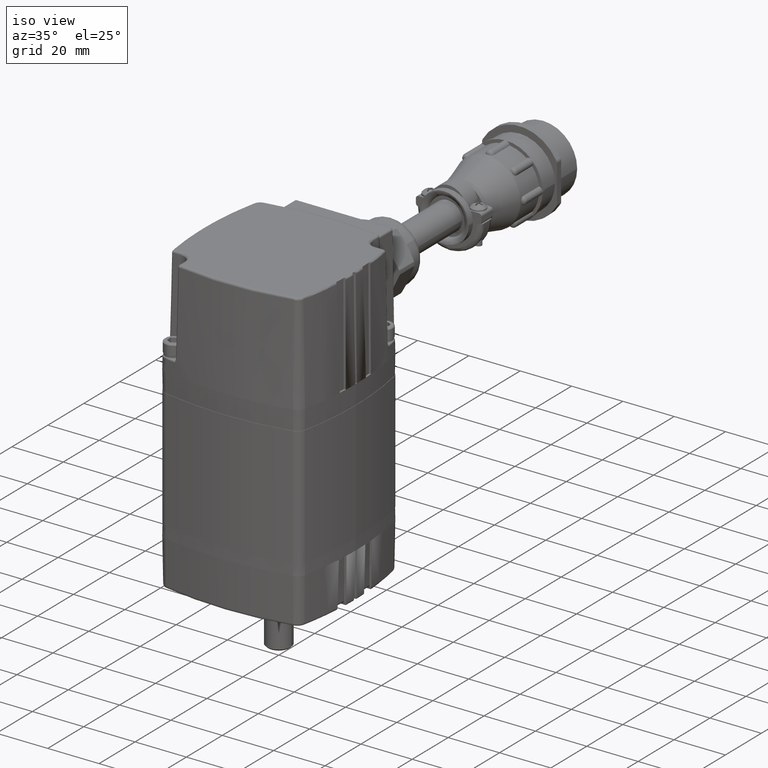
[diagram: clean part render]
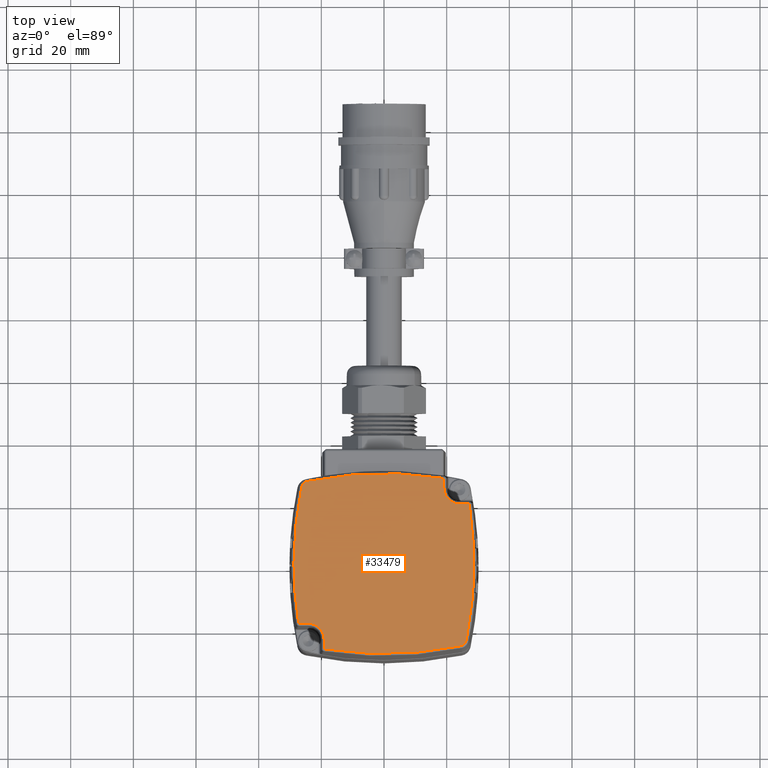
[diagram: tour spotlight — one face highlighted and labeled with its STEP entity id]
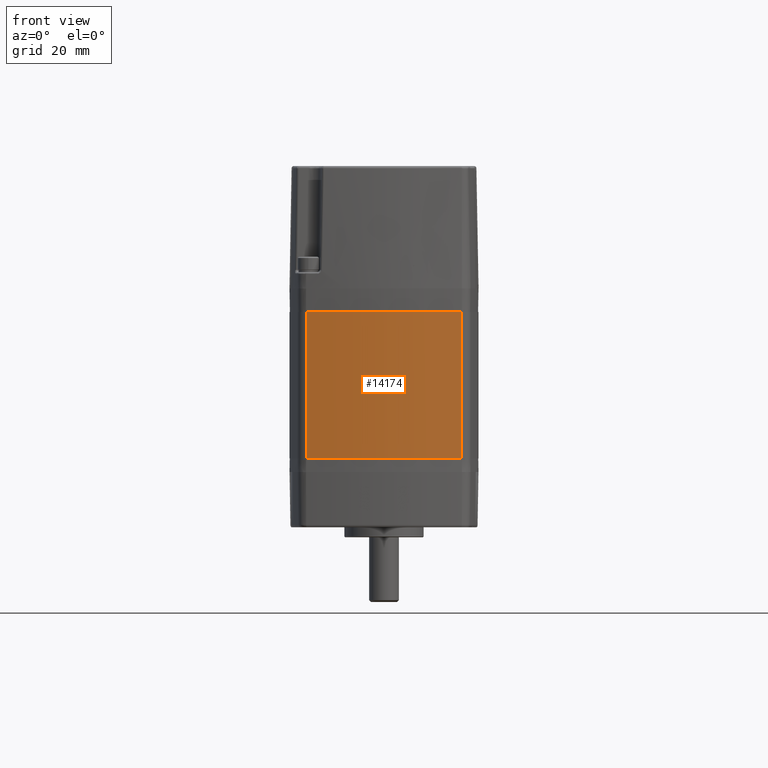
[diagram: tour spotlight — one face highlighted and labeled with its STEP entity id]
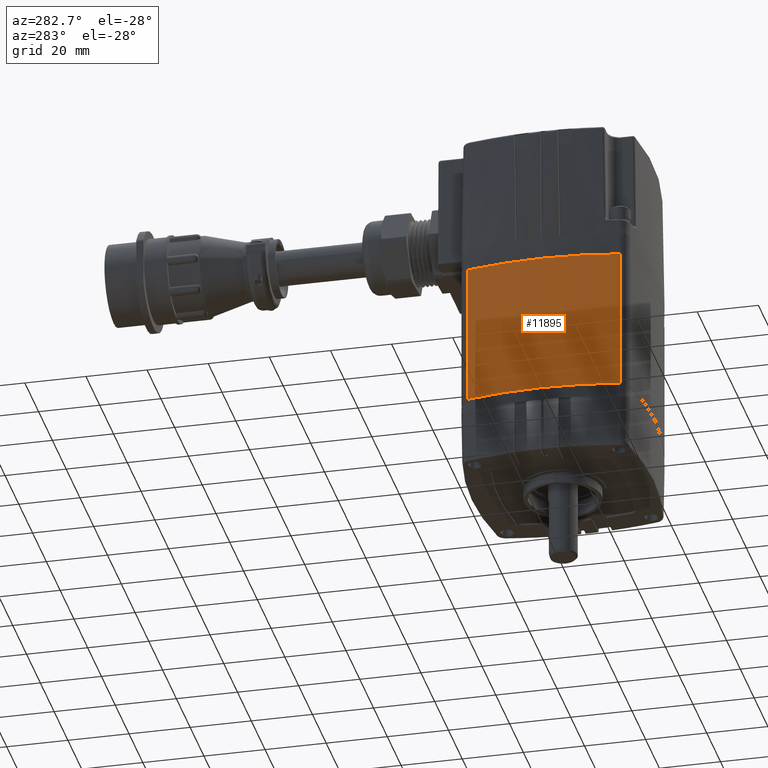
[diagram: tour spotlight — one face highlighted and labeled with its STEP entity id]
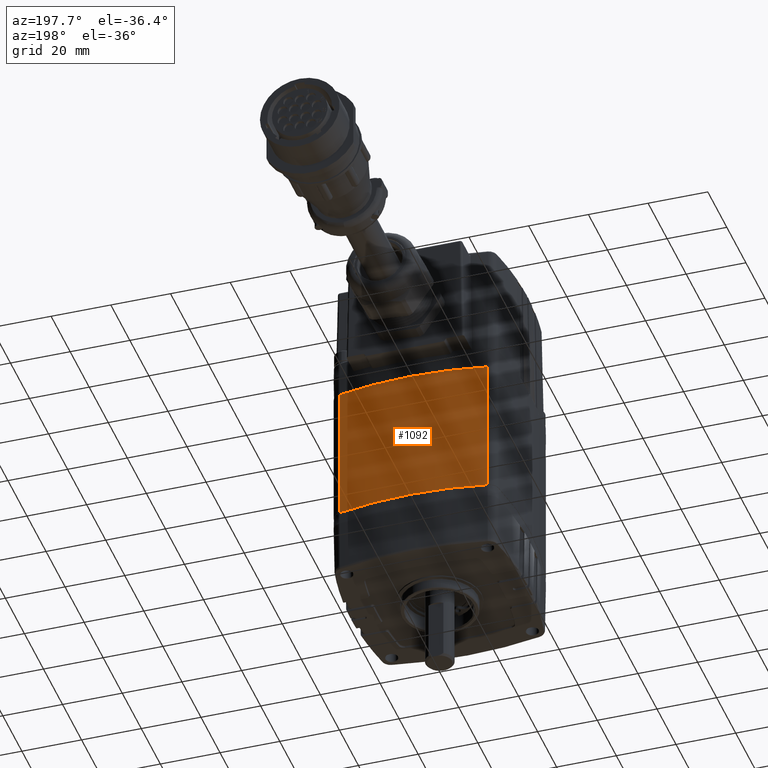
[diagram: tour spotlight — one face highlighted and labeled with its STEP entity id]
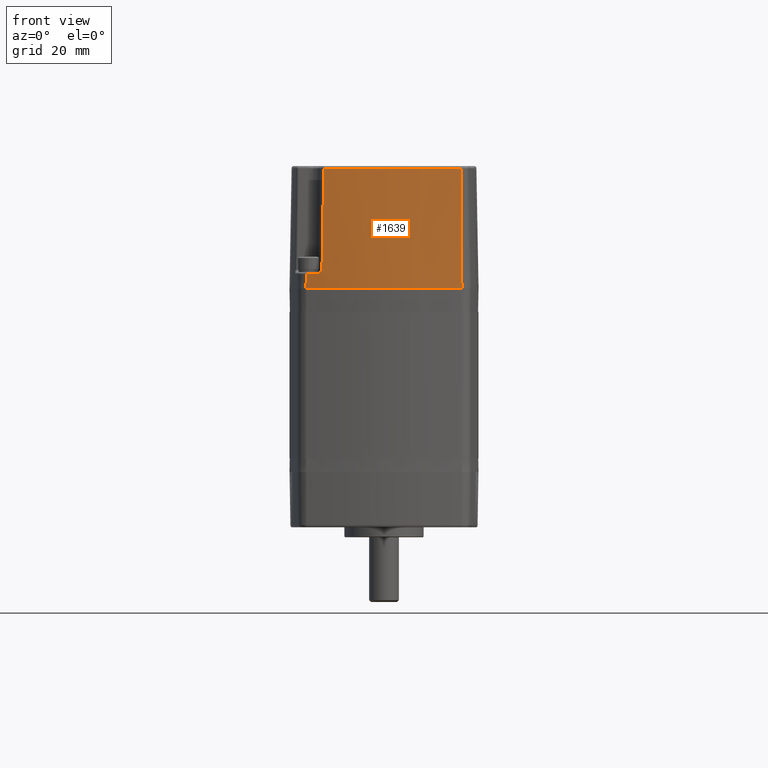
[diagram: tour spotlight — one face highlighted and labeled with its STEP entity id]
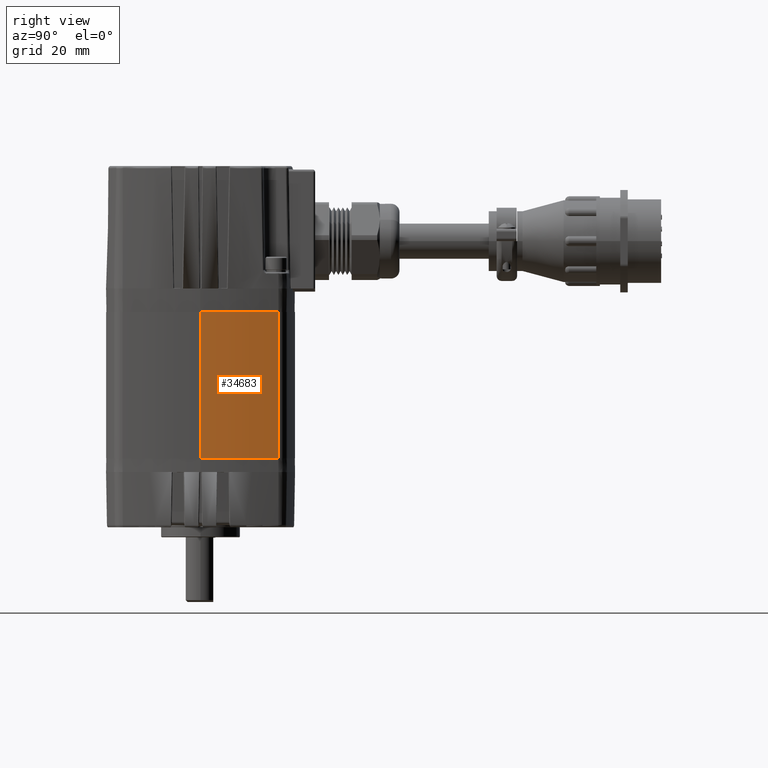
[diagram: tour spotlight — one face highlighted and labeled with its STEP entity id]
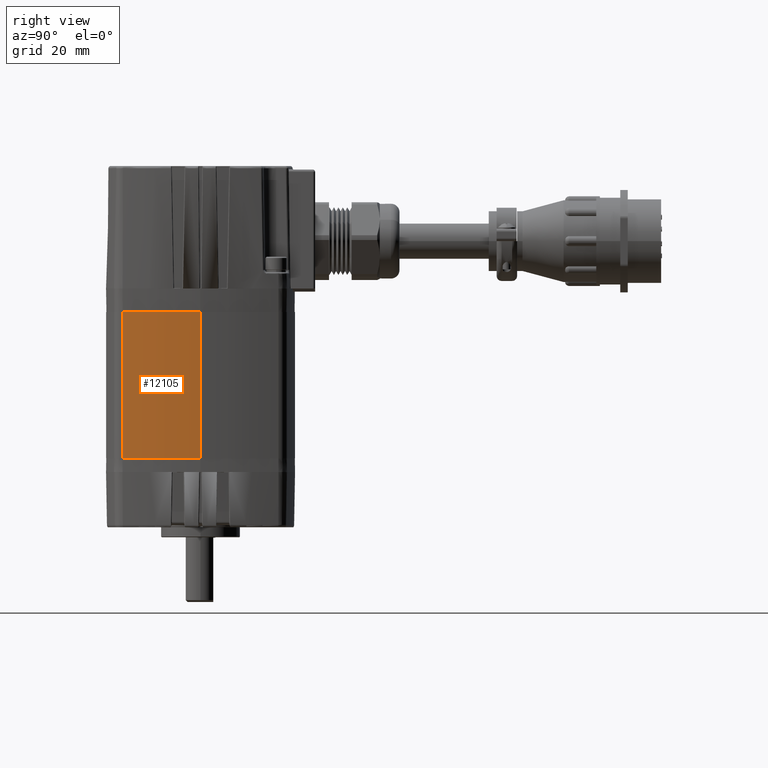
[diagram: tour spotlight — one face highlighted and labeled with its STEP entity id]
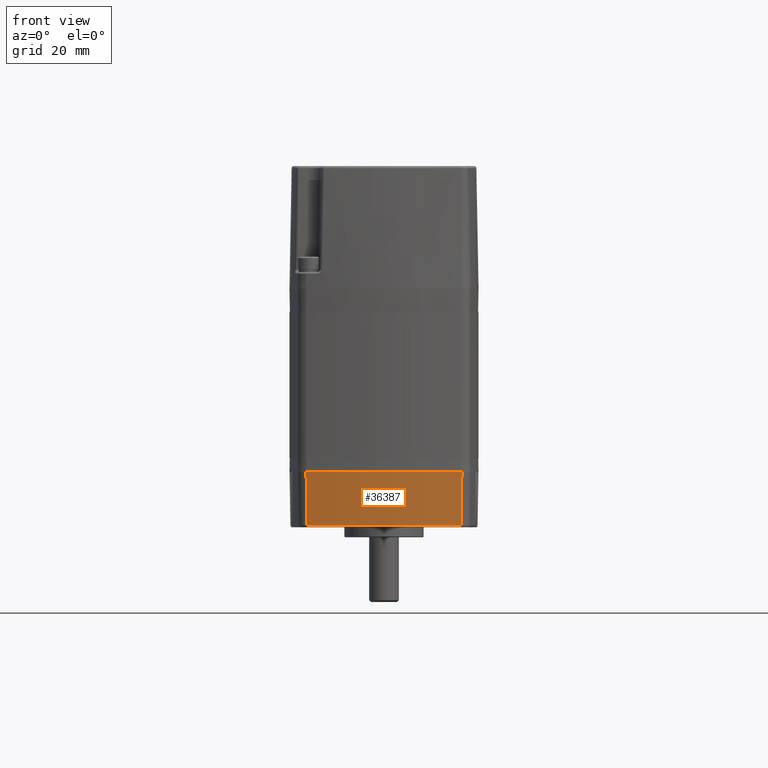
[diagram: tour spotlight — one face highlighted and labeled with its STEP entity id]
A machine part: a face-by-face anatomy tour. The part has 1172 B-rep faces; the first image is the clean iso view, then the 8 largest visible faces are spotlighted one at a time (largest first), each with its STEP entity span.

Face 1 — top view, entity #33479. In plain terms, the highlighted planar face has unit normal (0, 0, -1).
Definition (entity closure, byte-faithful):
#350 = PLANE ( 'NONE',  #34687 ) ;
#824 = ORIENTED_EDGE ( 'NONE', *, *, #33300, .F. ) ;
#1621 = CARTESIAN_POINT ( 'NONE',  ( 1.032429356242400500, 0.9674067805261568100, -1.860000000012984800 ) ) ;
#1811 =( BOUNDED_CURVE ( )  B_SPLINE_CURVE ( 3, ( #1621, #38370, #7902, #29300 ),
 .UNSPECIFIED., .F., .T. ) 
 B_SPLINE_CURVE_WITH_KNOTS ( ( 4, 4 ),
 ( 0.0000000000000000000, 1.000000000000000000 ),
 .UNSPECIFIED. ) 
 CURVE ( )  GEOMETRIC_REPRESENTATION_ITEM ( )  RATIONAL_B_SPLINE_CURVE ( ( 0.9570772342602944500, 0.8520200637530343000, 0.8520200637530343000, 0.9570772342602944500 ) ) 
 REPRESENTATION_ITEM ( '' )  );
#2029 = EDGE_CURVE ( 'NONE', #6014, #28182, #3324, .T. ) ;
#2673 = CARTESIAN_POINT ( 'NONE',  ( 1.071705150914283400, -0.7522165703631089600, -1.859999999945756800 ) ) ;
#2981 = CARTESIAN_POINT ( 'NONE',  ( 1.131138282254428500, -1.236978528518903300E-014, -1.860000000012984400 ) ) ;
#3324 = LINE ( 'NONE', #23103, #10577 ) ;
#3421 = CARTESIAN_POINT ( 'NONE',  ( 1.032429356242400500, 0.9674067805261568100, -1.860000000012984800 ) ) ;
#3886 = CARTESIAN_POINT ( 'NONE',  ( 0.3997145294070384400, 1.149496608415903500, -1.860000000021639700 ) ) ;
#4013 =( BOUNDED_CURVE ( )  B_SPLINE_CURVE ( 3, ( #29646, #11357, #38818, #20552 ),
 .UNSPECIFIED., .F., .T. ) 
 B_SPLINE_CURVE_WITH_KNOTS ( ( 4, 4 ),
 ( 0.0000000000000000000, 1.000000000000000000 ),
 .UNSPECIFIED. ) 
 CURVE ( )  GEOMETRIC_REPRESENTATION_ITEM ( )  RATIONAL_B_SPLINE_CURVE ( ( 0.9570772169255890000, 0.9467080853396554500, 0.9467080853396554500, 0.9570772169255890000 ) ) 
 REPRESENTATION_ITEM ( '' )  );
#4523 = ORIENTED_EDGE ( 'NONE', *, *, #38674, .F. ) ;
#4991 = CARTESIAN_POINT ( 'NONE',  ( -0.8341411496755086800, 0.7522165703190993900, -1.860000000021641200 ) ) ;
#5231 = EDGE_CURVE ( 'NONE', #30010, #34817, #23287, .T. ) ;
#5241 = VERTEX_POINT ( 'NONE', #31430 ) ;
#5489 = ORIENTED_EDGE ( 'NONE', *, *, #31800, .F. ) ;
#6014 = VERTEX_POINT ( 'NONE', #26153 ) ;
#6495 = DIRECTION ( 'NONE',  ( 1.000000000000000000, -1.093569679255777100E-014, -0.0000000000000000000 ) ) ;
#6815 = VERTEX_POINT ( 'NONE', #24311 ) ;
#7393 = ORIENTED_EDGE ( 'NONE', *, *, #18450, .F. ) ;
#7902 = CARTESIAN_POINT ( 'NONE',  ( 1.001128663644604800, 1.025475362336313800, -1.860000000021641000 ) ) ;
#8777 = CARTESIAN_POINT ( 'NONE',  ( -1.149496608432206000, -0.3997145294083938600, -1.860000000021640100 ) ) ;
#8908 =( BOUNDED_CURVE ( )  B_SPLINE_CURVE ( 3, ( #38541, #17220, #4991, #26400 ),
 .UNSPECIFIED., .F., .F. ) 
 B_SPLINE_CURVE_WITH_KNOTS ( ( 4, 4 ),
 ( 0.0000000000000000000, 1.000000000000000000 ),
 .UNSPECIFIED. ) 
 CURVE ( )  GEOMETRIC_REPRESENTATION_ITEM ( )  RATIONAL_B_SPLINE_CURVE ( ( 0.9570772354823341400, 0.7701962807133332400, 0.7701962807133332400, 0.9570772354823341400 ) ) 
 REPRESENTATION_ITEM ( '' )  );
#8919 = VERTEX_POINT ( 'NONE', #17690 ) ;
#9413 = ORIENTED_EDGE ( 'NONE', *, *, #24086, .F. ) ;
#9810 = VERTEX_POINT ( 'NONE', #38840 ) ;
#9888 = CARTESIAN_POINT ( 'NONE',  ( 0.8341411496755087900, -0.7522165703190997200, -1.860000000021641500 ) ) ;
#9919 = DIRECTION ( 'NONE',  ( -1.093569679255777100E-014, 1.000000000000000000, 0.0000000000000000000 ) ) ;
#10577 = VECTOR ( 'NONE', #32330, 39.37007874015748100 ) ;
#10754 = ORIENTED_EDGE ( 'NONE', *, *, #25392, .F. ) ;
#11151 = ORIENTED_EDGE ( 'NONE', *, *, #31619, .F. ) ;
#11357 = CARTESIAN_POINT ( 'NONE',  ( -0.3997145295138425600, -1.149496609700682500, -1.860000000021640100 ) ) ;
#11833 = VERTEX_POINT ( 'NONE', #24361 ) ;
#11971 = ORIENTED_EDGE ( 'NONE', *, *, #15649, .F. ) ;
#12047 = VERTEX_POINT ( 'NONE', #38150 ) ;
#12562 = CARTESIAN_POINT ( 'NONE',  ( 1.131138282254428500, -1.236978528518903300E-014, -1.860000000012984200 ) ) ;
#12668 = ORIENTED_EDGE ( 'NONE', *, *, #20429, .F. ) ;
#13169 = CARTESIAN_POINT ( 'NONE',  ( -0.1797715006895717900, 1.162731934035691400, -1.860000000021639700 ) ) ;
#13817 = DIRECTION ( 'NONE',  ( 1.093569679255777100E-014, -1.000000000000000000, -0.0000000000000000000 ) ) ;
#14346 = CARTESIAN_POINT ( 'NONE',  ( -1.032429356327706900, -0.9674067804350160400, -1.860000000012984400 ) ) ;
#14460 = CARTESIAN_POINT ( 'NONE',  ( -0.9674067805798055600, -1.032429356502558200, -1.860000000012984800 ) ) ;
#14976 = VERTEX_POINT ( 'NONE', #22334 ) ;
#15225 = CARTESIAN_POINT ( 'NONE',  ( 1.071705150914283400, -0.7522165703631089600, -1.859999999945756800 ) ) ;
#15649 = EDGE_CURVE ( 'NONE', #11833, #30010, #4013, .T. ) ;
#16410 = CARTESIAN_POINT ( 'NONE',  ( -1.032429356327706900, -0.9674067804350159300, -1.860000000012984400 ) ) ;
#16614 = VECTOR ( 'NONE', #13817, 39.37007874015748100 ) ;
#16994 = CARTESIAN_POINT ( 'NONE',  ( -0.7522165706465591100, 8.226012338928432000E-015, -1.860000000000000300 ) ) ;
#17220 = CARTESIAN_POINT ( 'NONE',  ( -0.7522165703190993900, 0.8341411496755086800, -1.860000000021641200 ) ) ;
#17458 = CARTESIAN_POINT ( 'NONE',  ( -1.071705150734702800, 0.7522165701882590500, -1.860000000068670300 ) ) ;
#17526 = DIRECTION ( 'NONE',  ( -1.000000000000000000, 1.093569679255777100E-014, 0.0000000000000000000 ) ) ;
#17690 = CARTESIAN_POINT ( 'NONE',  ( -0.7522165703616897600, 1.071705150589045800, -1.860000000149665300 ) ) ;
#17731 = FACE_OUTER_BOUND ( 'NONE', #30382, .T. ) ;
#17897 = CARTESIAN_POINT ( 'NONE',  ( -1.071705150734702800, 0.7522165701882590500, -1.860000000068670300 ) ) ;
#18450 = EDGE_CURVE ( 'NONE', #9810, #8919, #22921, .T. ) ;
#18478 =( BOUNDED_CURVE ( )  B_SPLINE_CURVE ( 3, ( #15225, #33463, #21326, #2981 ),
 .UNSPECIFIED., .F., .F. ) 
 B_SPLINE_CURVE_WITH_KNOTS ( ( 4, 4 ),
 ( 0.0000000000000000000, 1.000000000000000000 ),
 .UNSPECIFIED. ) 
 CURVE ( )  GEOMETRIC_REPRESENTATION_ITEM ( )  RATIONAL_B_SPLINE_CURVE ( ( 0.9570772342164161100, 0.9550949332542009200, 0.9550949332542009200, 0.9570772342164161100 ) ) 
 REPRESENTATION_ITEM ( '' )  );
#18988 = CARTESIAN_POINT ( 'NONE',  ( 0.7522165704050030000, -0.9500000002880485400, -1.860000000008656500 ) ) ;
#20429 = EDGE_CURVE ( 'NONE', #34817, #6014, #35592, .T. ) ;
#20552 = CARTESIAN_POINT ( 'NONE',  ( 0.7522165702490222200, -1.071705151054613800, -1.859999999935987700 ) ) ;
#21326 = CARTESIAN_POINT ( 'NONE',  ( 1.131138282416005900, -0.2520423114403188000, -1.860000000021639700 ) ) ;
#21742 = CARTESIAN_POINT ( 'NONE',  ( -1.144711942000045800, -1.144711942000045800, -1.860000000000000300 ) ) ;
#21750 = CARTESIAN_POINT ( 'NONE',  ( 1.098121614143382500, 0.6488464208529090000, -1.860000000021640800 ) ) ;
#22334 = CARTESIAN_POINT ( 'NONE',  ( 1.131138282254428500, -1.236978528518903300E-014, -1.860000000012984400 ) ) ;
#22921 =( BOUNDED_CURVE ( )  B_SPLINE_CURVE ( 3, ( #37417, #3886, #13169, #34474 ),
 .UNSPECIFIED., .F., .F. ) 
 B_SPLINE_CURVE_WITH_KNOTS ( ( 4, 4 ),
 ( 0.0000000000000000000, 1.000000000000000000 ),
 .UNSPECIFIED. ) 
 CURVE ( )  GEOMETRIC_REPRESENTATION_ITEM ( )  RATIONAL_B_SPLINE_CURVE ( ( 0.9570772336300994400, 0.9467081018631865500, 0.9467081018631865500, 0.9570772336300994400 ) ) 
 REPRESENTATION_ITEM ( '' )  );
#23103 = CARTESIAN_POINT ( 'NONE',  ( 8.226012338928428800E-015, -0.7522165706465591100, -1.860000000000000300 ) ) ;
#23287 = LINE ( 'NONE', #28210, #31432 ) ;
#23481 = CARTESIAN_POINT ( 'NONE',  ( -1.025475362336313800, -1.001128663644604800, -1.860000000021641000 ) ) ;
#23561 =( BOUNDED_CURVE ( )  B_SPLINE_CURVE ( 3, ( #17897, #30038, #8777, #30163 ),
 .UNSPECIFIED., .F., .F. ) 
 B_SPLINE_CURVE_WITH_KNOTS ( ( 4, 4 ),
 ( 0.0000000000000000000, 1.000000000000000000 ),
 .UNSPECIFIED. ) 
 CURVE ( )  GEOMETRIC_REPRESENTATION_ITEM ( )  RATIONAL_B_SPLINE_CURVE ( ( 0.9570772334181132400, 0.9467081016534966100, 0.9467081016534966100, 0.9570772334181132400 ) ) 
 REPRESENTATION_ITEM ( '' )  );
#23671 = EDGE_CURVE ( 'NONE', #24159, #29541, #23561, .T. ) ;
#24086 = EDGE_CURVE ( 'NONE', #12047, #6815, #8908, .T. ) ;
#24159 = VERTEX_POINT ( 'NONE', #17458 ) ;
#24311 = CARTESIAN_POINT ( 'NONE',  ( -0.9500000003600425100, 0.7522165704030729900, -1.860000000005410400 ) ) ;
#24361 = CARTESIAN_POINT ( 'NONE',  ( -0.9674067805798055600, -1.032429356502558200, -1.860000000012984800 ) ) ;
#24814 = DIRECTION ( 'NONE',  ( 0.0000000000000000000, -0.0000000000000000000, 1.000000000000000000 ) ) ;
#24886 = ORIENTED_EDGE ( 'NONE', *, *, #2029, .F. ) ;
#25086 = CARTESIAN_POINT ( 'NONE',  ( 0.7522165703190997200, -0.8341411496755087900, -1.860000000021641500 ) ) ;
#25392 = EDGE_CURVE ( 'NONE', #5241, #9810, #1811, .T. ) ;
#25564 =( BOUNDED_CURVE ( )  B_SPLINE_CURVE ( 3, ( #14346, #23481, #32714, #14460 ),
 .UNSPECIFIED., .F., .T. ) 
 B_SPLINE_CURVE_WITH_KNOTS ( ( 4, 4 ),
 ( 0.0000000000000000000, 1.000000000000000000 ),
 .UNSPECIFIED. ) 
 CURVE ( )  GEOMETRIC_REPRESENTATION_ITEM ( )  RATIONAL_B_SPLINE_CURVE ( ( 0.9570772342602923400, 0.8520200637530334100, 0.8520200637530334100, 0.9570772342602923400 ) ) 
 REPRESENTATION_ITEM ( '' )  );
#25813 =( BOUNDED_CURVE ( )  B_SPLINE_CURVE ( 3, ( #12562, #30847, #21750, #3421 ),
 .UNSPECIFIED., .F., .T. ) 
 B_SPLINE_CURVE_WITH_KNOTS ( ( 4, 4 ),
 ( 0.0000000000000000000, 1.000000000000000000 ),
 .UNSPECIFIED. ) 
 CURVE ( )  GEOMETRIC_REPRESENTATION_ITEM ( )  RATIONAL_B_SPLINE_CURVE ( ( 0.9570772342602966700, 0.9537815521664616500, 0.9537815521664616500, 0.9570772342602966700 ) ) 
 REPRESENTATION_ITEM ( '' )  );
#26153 = CARTESIAN_POINT ( 'NONE',  ( 0.9500000003600425100, -0.7522165704061495300, -1.860000000005410400 ) ) ;
#26400 = CARTESIAN_POINT ( 'NONE',  ( -0.9500000003600425100, 0.7522165704030729900, -1.860000000005410400 ) ) ;
#27922 = ORIENTED_EDGE ( 'NONE', *, *, #5231, .F. ) ;
#28182 = VERTEX_POINT ( 'NONE', #2673 ) ;
#28210 = CARTESIAN_POINT ( 'NONE',  ( 0.7522165706465591100, -8.226012338928432000E-015, -1.860000000000000300 ) ) ;
#29300 = CARTESIAN_POINT ( 'NONE',  ( 0.9674067805281073600, 1.032429356251858500, -1.860000000012984400 ) ) ;
#29541 = VERTEX_POINT ( 'NONE', #16410 ) ;
#29646 = CARTESIAN_POINT ( 'NONE',  ( -0.9674067805798055600, -1.032429356502558200, -1.860000000012984800 ) ) ;
#29660 = VECTOR ( 'NONE', #17526, 39.37007874015748100 ) ;
#29889 = ORIENTED_EDGE ( 'NONE', *, *, #23671, .F. ) ;
#30010 = VERTEX_POINT ( 'NONE', #33098 ) ;
#30038 = CARTESIAN_POINT ( 'NONE',  ( -1.162731934052039000, 0.1797715006901813300, -1.860000000021640100 ) ) ;
#30163 = CARTESIAN_POINT ( 'NONE',  ( -1.032429356327706900, -0.9674067804350159300, -1.860000000012984400 ) ) ;
#30382 = EDGE_LOOP ( 'NONE', ( #7393, #10754, #4523, #5489, #24886, #12668, #27922, #11971, #11151, #29889, #824, #9413, #36578 ) ) ;
#30847 = CARTESIAN_POINT ( 'NONE',  ( 1.131138282412737800, 0.3252632401177468200, -1.860000000021640800 ) ) ;
#31268 = CARTESIAN_POINT ( 'NONE',  ( 0.9500000003600425100, -0.7522165704061495300, -1.860000000005410400 ) ) ;
#31430 = CARTESIAN_POINT ( 'NONE',  ( 1.032429356242400500, 0.9674067805261568100, -1.860000000012984800 ) ) ;
#31432 = VECTOR ( 'NONE', #9919, 39.37007874015748100 ) ;
#31619 = EDGE_CURVE ( 'NONE', #29541, #11833, #25564, .T. ) ;
#31800 = EDGE_CURVE ( 'NONE', #28182, #14976, #18478, .T. ) ;
#32330 = DIRECTION ( 'NONE',  ( 1.000000000000000000, -1.093569679255777100E-014, -0.0000000000000000000 ) ) ;
#32714 = CARTESIAN_POINT ( 'NONE',  ( -1.001128663644604800, -1.025475362336313800, -1.860000000021641000 ) ) ;
#32809 = LINE ( 'NONE', #16994, #16614 ) ;
#33098 = CARTESIAN_POINT ( 'NONE',  ( 0.7522165702490222200, -1.071705151054613800, -1.859999999935987700 ) ) ;
#33300 = EDGE_CURVE ( 'NONE', #6815, #24159, #37775, .T. ) ;
#33463 = CARTESIAN_POINT ( 'NONE',  ( 1.111286120569143100, -0.5033015772443163400, -1.860000000021639700 ) ) ;
#33479 = ADVANCED_FACE ( 'NONE', ( #17731 ), #350, .F. ) ;
#34474 = CARTESIAN_POINT ( 'NONE',  ( -0.7522165703616897600, 1.071705150589045800, -1.860000000149665300 ) ) ;
#34687 = AXIS2_PLACEMENT_3D ( 'NONE', #21742, #24814, #6495 ) ;
#34817 = VERTEX_POINT ( 'NONE', #35398 ) ;
#35398 = CARTESIAN_POINT ( 'NONE',  ( 0.7522165704050030000, -0.9500000002880485400, -1.860000000008656500 ) ) ;
#35592 =( BOUNDED_CURVE ( )  B_SPLINE_CURVE ( 3, ( #18988, #25086, #9888, #31268 ),
 .UNSPECIFIED., .F., .F. ) 
 B_SPLINE_CURVE_WITH_KNOTS ( ( 4, 4 ),
 ( 0.0000000000000000000, 1.000000000000000000 ),
 .UNSPECIFIED. ) 
 CURVE ( )  GEOMETRIC_REPRESENTATION_ITEM ( )  RATIONAL_B_SPLINE_CURVE ( ( 0.9570772354823338100, 0.7701962807133327900, 0.7701962807133327900, 0.9570772354823338100 ) ) 
 REPRESENTATION_ITEM ( '' )  );
#35768 = CARTESIAN_POINT ( 'NONE',  ( -8.226012338928428800E-015, 0.7522165706465591100, -1.860000000000000300 ) ) ;
#36578 = ORIENTED_EDGE ( 'NONE', *, *, #37420, .F. ) ;
#37417 = CARTESIAN_POINT ( 'NONE',  ( 0.9674067805281072500, 1.032429356251858500, -1.860000000012984400 ) ) ;
#37420 = EDGE_CURVE ( 'NONE', #8919, #12047, #32809, .T. ) ;
#37775 = LINE ( 'NONE', #35768, #29660 ) ;
#38150 = CARTESIAN_POINT ( 'NONE',  ( -0.7522165704061495300, 0.9500000003600425100, -1.860000000005410400 ) ) ;
#38370 = CARTESIAN_POINT ( 'NONE',  ( 1.025475362336313800, 1.001128663644604800, -1.860000000021641000 ) ) ;
#38541 = CARTESIAN_POINT ( 'NONE',  ( -0.7522165704061495300, 0.9500000003600425100, -1.860000000005410400 ) ) ;
#38674 = EDGE_CURVE ( 'NONE', #14976, #5241, #25813, .T. ) ;
#38818 = CARTESIAN_POINT ( 'NONE',  ( 0.1797715007376068700, -1.162731935324007100, -1.860000000021640100 ) ) ;
#38840 = CARTESIAN_POINT ( 'NONE',  ( 0.9674067805281072500, 1.032429356251858500, -1.860000000012984400 ) ) ;

Face 2 — front view, entity #14174. In plain terms, the highlighted cylindrical surface (partial cylindrical patch) has radius 123.096 mm, axis along (0, 0, 1).
Definition (entity closure, byte-faithful):
#143 = AXIS2_PLACEMENT_3D ( 'NONE', #15000, #36295, #18051 ) ;
#314 = CYLINDRICAL_SURFACE ( 'NONE', #35157, 4.846300000000000300 ) ;
#1943 = CIRCLE ( 'NONE', #29377, 4.846300000000000300 ) ;
#4128 = EDGE_CURVE ( 'NONE', #15742, #10819, #10933, .T. ) ;
#10147 = VERTEX_POINT ( 'NONE', #29486 ) ;
#10407 = CARTESIAN_POINT ( 'NONE',  ( -0.9783630889088966700, -1.087217603070765900, -5.197342997073729300 ) ) ;
#10819 = VERTEX_POINT ( 'NONE', #13004 ) ;
#10933 = CIRCLE ( 'NONE', #143, 4.846300000000000300 ) ;
#11145 = EDGE_CURVE ( 'NONE', #10147, #23610, #1943, .T. ) ;
#13004 = CARTESIAN_POINT ( 'NONE',  ( -0.9783630889088966700, -1.087217603070766300, -1.840000000000000100 ) ) ;
#14174 = ADVANCED_FACE ( 'NONE', ( #17598 ), #314, .T. ) ;
#15000 = CARTESIAN_POINT ( 'NONE',  ( 0.0000000000000000000, 3.659300000000000000, -1.840000000000000100 ) ) ;
#15742 = VERTEX_POINT ( 'NONE', #36268 ) ;
#16067 = EDGE_CURVE ( 'NONE', #10819, #10147, #33660, .T. ) ;
#17598 = FACE_OUTER_BOUND ( 'NONE', #30564, .T. ) ;
#18032 = DIRECTION ( 'NONE',  ( 0.0000000000000000000, 0.0000000000000000000, 1.000000000000000000 ) ) ;
#18051 = DIRECTION ( 'NONE',  ( 1.000000000000000000, 0.0000000000000000000, 0.0000000000000000000 ) ) ;
#19622 = DIRECTION ( 'NONE',  ( 0.0000000000000000000, 0.0000000000000000000, 1.000000000000000000 ) ) ;
#20664 = CARTESIAN_POINT ( 'NONE',  ( 0.9783630889088972300, -1.087217603070765900, -5.197342997073729300 ) ) ;
#23610 = VERTEX_POINT ( 'NONE', #35627 ) ;
#23788 = ORIENTED_EDGE ( 'NONE', *, *, #4128, .F. ) ;
#24273 = ORIENTED_EDGE ( 'NONE', *, *, #11145, .F. ) ;
#25002 = LINE ( 'NONE', #20664, #26015 ) ;
#25572 = VECTOR ( 'NONE', #19622, 39.37007874015748100 ) ;
#25945 = EDGE_CURVE ( 'NONE', #15742, #23610, #25002, .T. ) ;
#26015 = VECTOR ( 'NONE', #35997, 39.37007874015748100 ) ;
#28508 = ORIENTED_EDGE ( 'NONE', *, *, #16067, .F. ) ;
#29377 = AXIS2_PLACEMENT_3D ( 'NONE', #36275, #18032, #39340 ) ;
#29486 = CARTESIAN_POINT ( 'NONE',  ( -0.9783630889088966700, -1.087217603070765900, 0.0000000000000000000 ) ) ;
#30564 = EDGE_LOOP ( 'NONE', ( #23788, #31515, #24273, #28508 ) ) ;
#31515 = ORIENTED_EDGE ( 'NONE', *, *, #25945, .T. ) ;
#31944 = CARTESIAN_POINT ( 'NONE',  ( 0.0000000000000000000, 3.659300000000000000, -5.197342997073729300 ) ) ;
#33660 = LINE ( 'NONE', #10407, #25572 ) ;
#34967 = DIRECTION ( 'NONE',  ( 0.0000000000000000000, 0.0000000000000000000, 1.000000000000000000 ) ) ;
#35157 = AXIS2_PLACEMENT_3D ( 'NONE', #31944, #34967, #37785 ) ;
#35627 = CARTESIAN_POINT ( 'NONE',  ( 0.9783630889088972300, -1.087217603070765900, 0.0000000000000000000 ) ) ;
#35997 = DIRECTION ( 'NONE',  ( 0.0000000000000000000, 0.0000000000000000000, 1.000000000000000000 ) ) ;
#36268 = CARTESIAN_POINT ( 'NONE',  ( 0.9783630889088972300, -1.087217603070765900, -1.840000000000000100 ) ) ;
#36275 = CARTESIAN_POINT ( 'NONE',  ( 0.0000000000000000000, 3.659300000000000000, 0.0000000000000000000 ) ) ;
#36295 = DIRECTION ( 'NONE',  ( -0.0000000000000000000, -0.0000000000000000000, -1.000000000000000000 ) ) ;
#37785 = DIRECTION ( 'NONE',  ( 1.000000000000000000, 0.0000000000000000000, 0.0000000000000000000 ) ) ;
#39340 = DIRECTION ( 'NONE',  ( 1.000000000000000000, 0.0000000000000000000, 0.0000000000000000000 ) ) ;

Face 3 — auxiliary view, entity #11895. In plain terms, the highlighted cylindrical surface (partial cylindrical patch) has radius 123.096 mm, axis along (0, 0, 1).
Definition (entity closure, byte-faithful):
#51 = DIRECTION ( 'NONE',  ( 0.0000000000000000000, 0.0000000000000000000, 1.000000000000000000 ) ) ;
#442 = AXIS2_PLACEMENT_3D ( 'NONE', #17856, #39167, #20891 ) ;
#1182 = ORIENTED_EDGE ( 'NONE', *, *, #35840, .F. ) ;
#1729 = AXIS2_PLACEMENT_3D ( 'NONE', #3363, #24620, #24761 ) ;
#2680 = VECTOR ( 'NONE', #5679, 39.37007874015748100 ) ;
#3363 = CARTESIAN_POINT ( 'NONE',  ( 3.659300000000000000, -2.530801583817758400E-016, -5.197342997073729300 ) ) ;
#4062 = CARTESIAN_POINT ( 'NONE',  ( -1.087217603070765900, 0.9783630889088960100, -1.840000000000000100 ) ) ;
#5152 = CIRCLE ( 'NONE', #31265, 4.846300000000000300 ) ;
#5679 = DIRECTION ( 'NONE',  ( 0.0000000000000000000, 0.0000000000000000000, 1.000000000000000000 ) ) ;
#6100 = CIRCLE ( 'NONE', #442, 4.846300000000000300 ) ;
#7238 = ORIENTED_EDGE ( 'NONE', *, *, #14401, .F. ) ;
#10899 = LINE ( 'NONE', #23853, #2680 ) ;
#11895 = ADVANCED_FACE ( 'NONE', ( #37743 ), #28680, .T. ) ;
#13450 = EDGE_CURVE ( 'NONE', #15092, #14499, #5152, .T. ) ;
#14401 = EDGE_CURVE ( 'NONE', #21197, #15092, #10899, .T. ) ;
#14499 = VERTEX_POINT ( 'NONE', #21604 ) ;
#15092 = VERTEX_POINT ( 'NONE', #16891 ) ;
#15428 = VECTOR ( 'NONE', #36035, 39.37007874015748100 ) ;
#15445 = ORIENTED_EDGE ( 'NONE', *, *, #13450, .F. ) ;
#16891 = CARTESIAN_POINT ( 'NONE',  ( -1.087217603070765900, 0.9783630889088960100, 0.0000000000000000000 ) ) ;
#17856 = CARTESIAN_POINT ( 'NONE',  ( 3.659300000000000000, -2.530801583817758400E-016, -1.840000000000000100 ) ) ;
#18396 = CARTESIAN_POINT ( 'NONE',  ( 3.659300000000000000, -2.530801583817758400E-016, 0.0000000000000000000 ) ) ;
#18881 = ORIENTED_EDGE ( 'NONE', *, *, #26853, .T. ) ;
#20891 = DIRECTION ( 'NONE',  ( 1.000000000000000000, 3.552713678800500900E-015, 0.0000000000000000000 ) ) ;
#21197 = VERTEX_POINT ( 'NONE', #4062 ) ;
#21437 = DIRECTION ( 'NONE',  ( 1.000000000000000000, 0.0000000000000000000, 0.0000000000000000000 ) ) ;
#21604 = CARTESIAN_POINT ( 'NONE',  ( -1.087217603070765200, -0.9783630889088978900, 0.0000000000000000000 ) ) ;
#23523 = LINE ( 'NONE', #29796, #15428 ) ;
#23853 = CARTESIAN_POINT ( 'NONE',  ( -1.087217603070765900, 0.9783630889088960100, -5.197342997073729300 ) ) ;
#24620 = DIRECTION ( 'NONE',  ( 0.0000000000000000000, 0.0000000000000000000, 1.000000000000000000 ) ) ;
#24761 = DIRECTION ( 'NONE',  ( 1.000000000000000000, 0.0000000000000000000, 0.0000000000000000000 ) ) ;
#26853 = EDGE_CURVE ( 'NONE', #36095, #14499, #23523, .T. ) ;
#28680 = CYLINDRICAL_SURFACE ( 'NONE', #1729, 4.846300000000000300 ) ;
#29796 = CARTESIAN_POINT ( 'NONE',  ( -1.087217603070765200, -0.9783630889088978900, -5.197342997073729300 ) ) ;
#31265 = AXIS2_PLACEMENT_3D ( 'NONE', #18396, #51, #21437 ) ;
#31962 = EDGE_LOOP ( 'NONE', ( #1182, #18881, #15445, #7238 ) ) ;
#34480 = CARTESIAN_POINT ( 'NONE',  ( -1.087217603070765200, -0.9783630889088978900, -1.840000000000000100 ) ) ;
#35840 = EDGE_CURVE ( 'NONE', #36095, #21197, #6100, .T. ) ;
#36035 = DIRECTION ( 'NONE',  ( 0.0000000000000000000, 0.0000000000000000000, 1.000000000000000000 ) ) ;
#36095 = VERTEX_POINT ( 'NONE', #34480 ) ;
#37743 = FACE_OUTER_BOUND ( 'NONE', #31962, .T. ) ;
#39167 = DIRECTION ( 'NONE',  ( -0.0000000000000000000, -0.0000000000000000000, -1.000000000000000000 ) ) ;

Face 4 — auxiliary view, entity #1092. In plain terms, the highlighted cylindrical surface (partial cylindrical patch) has radius 123.096 mm, axis along (0, 0, 1).
Definition (entity closure, byte-faithful):
#362 = EDGE_CURVE ( 'NONE', #18873, #4693, #32183, .T. ) ;
#1092 = ADVANCED_FACE ( 'NONE', ( #14018 ), #21111, .T. ) ;
#1454 = CIRCLE ( 'NONE', #14409, 4.846300000000000300 ) ;
#1465 = CARTESIAN_POINT ( 'NONE',  ( -0.9783630889088981200, 1.087217603070765400, -1.840000000000000100 ) ) ;
#1485 = DIRECTION ( 'NONE',  ( -1.000000000000000000, 0.0000000000000000000, 0.0000000000000000000 ) ) ;
#3605 = DIRECTION ( 'NONE',  ( 1.000000000000000000, 0.0000000000000000000, 0.0000000000000000000 ) ) ;
#4367 = ORIENTED_EDGE ( 'NONE', *, *, #28483, .F. ) ;
#4693 = VERTEX_POINT ( 'NONE', #37607 ) ;
#5828 = CARTESIAN_POINT ( 'NONE',  ( -0.9783630889088981200, 1.087217603070765400, 0.0000000000000000000 ) ) ;
#10090 = AXIS2_PLACEMENT_3D ( 'NONE', #15973, #12903, #3605 ) ;
#11188 = VERTEX_POINT ( 'NONE', #5828 ) ;
#11295 = DIRECTION ( 'NONE',  ( 0.0000000000000000000, 0.0000000000000000000, 1.000000000000000000 ) ) ;
#12903 = DIRECTION ( 'NONE',  ( 0.0000000000000000000, 0.0000000000000000000, 1.000000000000000000 ) ) ;
#12995 = DIRECTION ( 'NONE',  ( -0.0000000000000000000, -0.0000000000000000000, -1.000000000000000000 ) ) ;
#13038 = EDGE_LOOP ( 'NONE', ( #21618, #30703, #4367, #26722 ) ) ;
#14018 = FACE_OUTER_BOUND ( 'NONE', #13038, .T. ) ;
#14409 = AXIS2_PLACEMENT_3D ( 'NONE', #38097, #19826, #1485 ) ;
#15376 = EDGE_CURVE ( 'NONE', #35254, #18873, #25615, .T. ) ;
#15973 = CARTESIAN_POINT ( 'NONE',  ( 0.0000000000000000000, -3.659300000000000000, -5.197342997073729300 ) ) ;
#16167 = CARTESIAN_POINT ( 'NONE',  ( 0.9783630889088976700, 1.087217603070765400, -5.197342997073729300 ) ) ;
#16305 = DIRECTION ( 'NONE',  ( 0.0000000000000000000, 0.0000000000000000000, 1.000000000000000000 ) ) ;
#17208 = VECTOR ( 'NONE', #11295, 39.37007874015748100 ) ;
#18873 = VERTEX_POINT ( 'NONE', #29791 ) ;
#19826 = DIRECTION ( 'NONE',  ( 0.0000000000000000000, 0.0000000000000000000, 1.000000000000000000 ) ) ;
#21111 = CYLINDRICAL_SURFACE ( 'NONE', #10090, 4.846300000000000300 ) ;
#21618 = ORIENTED_EDGE ( 'NONE', *, *, #15376, .F. ) ;
#23999 = VECTOR ( 'NONE', #16305, 39.37007874015748100 ) ;
#25282 = LINE ( 'NONE', #26503, #17208 ) ;
#25615 = CIRCLE ( 'NONE', #27264, 4.846300000000000300 ) ;
#26503 = CARTESIAN_POINT ( 'NONE',  ( -0.9783630889088981200, 1.087217603070765400, -5.197342997073729300 ) ) ;
#26722 = ORIENTED_EDGE ( 'NONE', *, *, #362, .F. ) ;
#27264 = AXIS2_PLACEMENT_3D ( 'NONE', #31281, #12995, #34296 ) ;
#28483 = EDGE_CURVE ( 'NONE', #4693, #11188, #1454, .T. ) ;
#29791 = CARTESIAN_POINT ( 'NONE',  ( 0.9783630889088976700, 1.087217603070765200, -1.840000000000000100 ) ) ;
#30703 = ORIENTED_EDGE ( 'NONE', *, *, #34376, .T. ) ;
#31281 = CARTESIAN_POINT ( 'NONE',  ( 0.0000000000000000000, -3.659300000000000000, -1.840000000000000100 ) ) ;
#32183 = LINE ( 'NONE', #16167, #23999 ) ;
#34296 = DIRECTION ( 'NONE',  ( 1.000000000000000000, -1.071025563411695400E-014, 0.0000000000000000000 ) ) ;
#34376 = EDGE_CURVE ( 'NONE', #35254, #11188, #25282, .T. ) ;
#35254 = VERTEX_POINT ( 'NONE', #1465 ) ;
#37607 = CARTESIAN_POINT ( 'NONE',  ( 0.9783630889088976700, 1.087217603070765400, 0.0000000000000000000 ) ) ;
#38097 = CARTESIAN_POINT ( 'NONE',  ( 0.0000000000000000000, -3.659300000000000000, 0.0000000000000000000 ) ) ;

Face 5 — front view, entity #1639. In plain terms, the highlighted conical surface has half-angle 1 deg.
Definition (entity closure, byte-faithful):
#534 = CARTESIAN_POINT ( 'NONE',  ( 0.8379347009896083200, -1.111225295842627600, -0.5053490482779478000 ) ) ;
#758 = CIRCLE ( 'NONE', #24254, 4.843064720324366400 ) ;
#783 = ORIENTED_EDGE ( 'NONE', *, *, #25831, .T. ) ;
#1014 = CARTESIAN_POINT ( 'NONE',  ( -4.001152742461201900E-014, 3.658800000000121500, -0.5053490486702180200 ) ) ;
#1592 = CARTESIAN_POINT ( 'NONE',  ( 0.9787899566854878500, -1.087629596015567700, -0.3200000000000009500 ) ) ;
#1639 = ADVANCED_FACE ( 'NONE', ( #16835 ), #12990, .T. ) ;
#1951 = CARTESIAN_POINT ( 'NONE',  ( 0.9761274026302722000, -1.074718125286897100, -1.075261786000000200 ) ) ;
#2214 = CARTESIAN_POINT ( 'NONE',  ( 0.8246173090000454800, -1.113515099000072600, -0.5070848170000001900 ) ) ;
#2349 = CARTESIAN_POINT ( 'NONE',  ( 0.7876213080000457100, -1.119220198000072200, -0.5375995310000001300 ) ) ;
#2684 = VERTEX_POINT ( 'NONE', #10846 ) ;
#2800 = ORIENTED_EDGE ( 'NONE', *, *, #37483, .F. ) ;
#2969 = CARTESIAN_POINT ( 'NONE',  ( -4.001152742461201900E-014, 3.658800000000121500, -1.830523571999999500 ) ) ;
#3238 = AXIS2_PLACEMENT_3D ( 'NONE', #13947, #35224, #16992 ) ;
#4090 = DIRECTION ( 'NONE',  ( -1.000000000000000000, 1.094304002477529400E-014, -3.666482482527805000E-016 ) ) ;
#4361 = CARTESIAN_POINT ( 'NONE',  ( 0.7569270819847671000, -1.101328400778652800, -1.830523571458962300 ) ) ;
#4458 = CIRCLE ( 'NONE', #3238, 4.846300000000239200 ) ;
#4786 = CARTESIAN_POINT ( 'NONE',  ( 0.7793175990752646600, -1.120283035261253600, -0.5544764251063002400 ) ) ;
#4884 = DIRECTION ( 'NONE',  ( -0.003524800383484023900, 0.01709275496034680000, -0.9998476951566782600 ) ) ;
#5289 = CARTESIAN_POINT ( 'NONE',  ( 0.8197669630000455900, -1.114323103000072600, -0.5086398760000002700 ) ) ;
#5377 = VERTEX_POINT ( 'NONE', #1592 ) ;
#5413 = CARTESIAN_POINT ( 'NONE',  ( 0.7851584860000456700, -1.119545931000072800, -0.5420983340000000700 ) ) ;
#5761 = EDGE_CURVE ( 'NONE', #25300, #33038, #758, .T. ) ;
#5993 = CARTESIAN_POINT ( 'NONE',  ( -0.9761274030343742900, -1.074718124883294400, -1.075261786000000200 ) ) ;
#6069 = DIRECTION ( 'NONE',  ( -1.000000000000000000, 8.275006064901098400E-015, -1.700343711965979100E-016 ) ) ;
#7422 = EDGE_CURVE ( 'NONE', #9687, #25748, #18865, .T. ) ;
#7506 = B_SPLINE_CURVE_WITH_KNOTS ( 'NONE', 3,
 ( #20414, #29639, #38809, #20547, #2214, #23592, #5289, #26694, #8360, #29756, #11478, #32826, #14571, #35872, #17631, #38942, #20667, #2349, #23724, #5413, #26813, #8502, #29891, #11597, #32959, #14706 ),
 .UNSPECIFIED., .F., .F.,
 ( 4, 2, 2, 2, 2, 2, 2, 2, 2, 2, 2, 2, 4 ),
 ( 0.0000000000000000000, 0.1249999999999998200, 0.1874999999999996700, 0.2500000000000000600, 0.3749999999999996700, 0.4999999999999983300, 0.6249999999999998900, 0.6875000000000006700, 0.7500000000000017800, 0.8124999999999974500, 0.8749999999999982200, 0.9374999999999990000, 1.000000000000000000 ),
 .UNSPECIFIED. ) ;
#8037 = DIRECTION ( 'NONE',  ( 1.000000000000000000, -1.088219975658226600E-014, 0.0000000000000000000 ) ) ;
#8360 = CARTESIAN_POINT ( 'NONE',  ( 0.8120816560000456700, -1.115575238000072500, -0.5121427819999999600 ) ) ;
#8397 = ORIENTED_EDGE ( 'NONE', *, *, #7422, .T. ) ;
#8502 = CARTESIAN_POINT ( 'NONE',  ( 0.7828743440000456300, -1.119839345000072300, -0.5466968200000003100 ) ) ;
#9687 = VERTEX_POINT ( 'NONE', #14226 ) ;
#10139 = EDGE_CURVE ( 'NONE', #5377, #25300, #27802, .T. ) ;
#10752 = VECTOR ( 'NONE', #33500, 39.37007874015748900 ) ;
#10846 = CARTESIAN_POINT ( 'NONE',  ( 0.7569270819847671000, -1.101328400778652800, -1.830523571458962300 ) ) ;
#11478 = CARTESIAN_POINT ( 'NONE',  ( 0.8036929000000455600, -1.116891802000072400, -0.5179342420000001600 ) ) ;
#11597 = CARTESIAN_POINT ( 'NONE',  ( 0.7807157930000456800, -1.120110087000072600, -0.5513547619999998900 ) ) ;
#12062 = ORIENTED_EDGE ( 'NONE', *, *, #38832, .F. ) ;
#12539 = VECTOR ( 'NONE', #4884, 39.37007874015748900 ) ;
#12990 = CONICAL_SURFACE ( 'NONE', #14735, 4.819933713000238200, 0.01745329250348842700 ) ;
#13947 = CARTESIAN_POINT ( 'NONE',  ( -4.001152742461201900E-014, 3.658800000000121500, -0.3200000000000009500 ) ) ;
#14226 = CARTESIAN_POINT ( 'NONE',  ( -0.9787899554511906300, -1.087629596109945800, -0.3200000000000009500 ) ) ;
#14571 = CARTESIAN_POINT ( 'NONE',  ( 0.7964274920000457000, -1.117982855000072300, -0.5250410060000003700 ) ) ;
#14706 = CARTESIAN_POINT ( 'NONE',  ( 0.7793175990752646600, -1.120283035261253600, -0.5544764251063002400 ) ) ;
#14735 = AXIS2_PLACEMENT_3D ( 'NONE', #29009, #38075, #8037 ) ;
#16647 = CARTESIAN_POINT ( 'NONE',  ( 0.9781365375005410800, -1.084460987804610800, -0.5053490483474348800 ) ) ;
#16835 = FACE_OUTER_BOUND ( 'NONE', #28985, .T. ) ;
#16992 = DIRECTION ( 'NONE',  ( 1.000000000000000000, -1.093573470009782500E-014, 1.832017411098862500E-016 ) ) ;
#17631 = CARTESIAN_POINT ( 'NONE',  ( 0.7922438620000456000, -1.118582943000072900, -0.5304207000000000800 ) ) ;
#18865 = LINE ( 'NONE', #5993, #10752 ) ;
#19245 = ORIENTED_EDGE ( 'NONE', *, *, #5761, .F. ) ;
#20414 = CARTESIAN_POINT ( 'NONE',  ( 0.8379347009896083200, -1.111225295842627600, -0.5053490482779478000 ) ) ;
#20547 = CARTESIAN_POINT ( 'NONE',  ( 0.8262499060000457800, -1.113239973000072600, -0.5066754750000001000 ) ) ;
#20667 = CARTESIAN_POINT ( 'NONE',  ( 0.7893854230000455500, -1.118980791000072600, -0.5346756650000003000 ) ) ;
#20726 = ORIENTED_EDGE ( 'NONE', *, *, #25978, .F. ) ;
#22421 = DIRECTION ( 'NONE',  ( 0.0000000000000000000, -0.0000000000000000000, -1.000000000000000000 ) ) ;
#22428 = ORIENTED_EDGE ( 'NONE', *, *, #10139, .F. ) ;
#22689 = CARTESIAN_POINT ( 'NONE',  ( 0.7643723087636996600, -1.107643685634289300, -1.406226600019198100 ) ) ;
#23548 = VERTEX_POINT ( 'NONE', #4786 ) ;
#23592 = CARTESIAN_POINT ( 'NONE',  ( 0.8213791200000456500, -1.114056134000073000, -0.5080653440000000300 ) ) ;
#23724 = CARTESIAN_POINT ( 'NONE',  ( 0.7867789930000457200, -1.119332663000072600, -0.5390859599999999800 ) ) ;
#24043 = CIRCLE ( 'NONE', #31993, 4.819933713000238200 ) ;
#24254 = AXIS2_PLACEMENT_3D ( 'NONE', #1014, #22421, #4090 ) ;
#24375 = DIRECTION ( 'NONE',  ( 0.0000000000000000000, -0.0000000000000000000, -1.000000000000000000 ) ) ;
#25300 = VERTEX_POINT ( 'NONE', #16647 ) ;
#25748 = VERTEX_POINT ( 'NONE', #37786 ) ;
#25831 = EDGE_CURVE ( 'NONE', #5377, #9687, #4458, .T. ) ;
#25978 = EDGE_CURVE ( 'NONE', #2684, #25748, #24043, .T. ) ;
#26694 = CARTESIAN_POINT ( 'NONE',  ( 0.8150642980000456500, -1.115094956000072500, -0.5105724290000001100 ) ) ;
#26813 = CARTESIAN_POINT ( 'NONE',  ( 0.7843804880000455600, -1.119646707000072400, -0.5436240250000000700 ) ) ;
#27802 = LINE ( 'NONE', #1951, #12539 ) ;
#28717 = CARTESIAN_POINT ( 'NONE',  ( 0.7718358143581944800, -1.113961908066706700, -0.9808775518950526600 ) ) ;
#28985 = EDGE_LOOP ( 'NONE', ( #20726, #12062, #2800, #19245, #22428, #783, #8397 ) ) ;
#29009 = CARTESIAN_POINT ( 'NONE',  ( -4.001152742461201900E-014, 3.658800000000121500, -1.830523572000000400 ) ) ;
#29639 = CARTESIAN_POINT ( 'NONE',  ( 0.8345332090000455700, -1.111822825000072300, -0.5053490490000001100 ) ) ;
#29756 = CARTESIAN_POINT ( 'NONE',  ( 0.8064033380000454900, -1.116472613000072600, -0.5158138420000000200 ) ) ;
#29891 = CARTESIAN_POINT ( 'NONE',  ( 0.7821455970000457100, -1.119931288000072200, -0.5482449959999999800 ) ) ;
#31993 = AXIS2_PLACEMENT_3D ( 'NONE', #2969, #24375, #6069 ) ;
#32826 = CARTESIAN_POINT ( 'NONE',  ( 0.7987153540000456700, -1.117645236000072600, -0.5225428799999999300 ) ) ;
#32959 = CARTESIAN_POINT ( 'NONE',  ( 0.7800138910000454800, -1.120197040000072700, -0.5529186199999999200 ) ) ;
#33038 = VERTEX_POINT ( 'NONE', #534 ) ;
#33500 = DIRECTION ( 'NONE',  ( 0.003524800393564777800, 0.01709275495826856000, -0.9998476951566782600 ) ) ;
#35224 = DIRECTION ( 'NONE',  ( 0.0000000000000000000, 0.0000000000000000000, -1.000000000000000000 ) ) ;
#35872 = CARTESIAN_POINT ( 'NONE',  ( 0.7932585150000456300, -1.118438991000072700, -0.5290416020000002800 ) ) ;
#37483 = EDGE_CURVE ( 'NONE', #33038, #23548, #7506, .T. ) ;
#37778 = CARTESIAN_POINT ( 'NONE',  ( 0.7793175990752646600, -1.120283035261253600, -0.5544764251063002400 ) ) ;
#37786 = CARTESIAN_POINT ( 'NONE',  ( -0.9734648510553978200, -1.061806653837446200, -1.830523572001896400 ) ) ;
#38075 = DIRECTION ( 'NONE',  ( -0.0000000000000000000, 0.0000000000000000000, 1.000000000000000000 ) ) ;
#38240 = B_SPLINE_CURVE_WITH_KNOTS ( 'NONE', 3,
 ( #37778, #28717, #22689, #4361 ),
 .UNSPECIFIED., .F., .F.,
 ( 4, 4 ),
 ( 0.0000000000000000000, 1.000000000000000000 ),
 .UNSPECIFIED. ) ;
#38809 = CARTESIAN_POINT ( 'NONE',  ( 0.8311878680000456300, -1.112400730000072700, -0.5056883210000000500 ) ) ;
#38832 = EDGE_CURVE ( 'NONE', #23548, #2684, #38240, .T. ) ;
#38942 = CARTESIAN_POINT ( 'NONE',  ( 0.7903071950000455400, -1.118853853000072700, -0.5332382100000001600 ) ) ;

Face 6 — right view, entity #34683. In plain terms, the highlighted cylindrical surface (partial cylindrical patch) has radius 123.096 mm, axis along (0, 0, 1).
Definition (entity closure, byte-faithful):
#909 = CARTESIAN_POINT ( 'NONE',  ( 1.087217603070765900, 0.9783630889088971200, 0.0000000000000000000 ) ) ;
#3293 = EDGE_CURVE ( 'NONE', #8802, #39339, #23824, .T. ) ;
#6114 = AXIS2_PLACEMENT_3D ( 'NONE', #29549, #11268, #32625 ) ;
#6624 = EDGE_LOOP ( 'NONE', ( #11455, #11796, #9333, #32299 ) ) ;
#8802 = VERTEX_POINT ( 'NONE', #16919 ) ;
#9333 = ORIENTED_EDGE ( 'NONE', *, *, #21688, .T. ) ;
#10469 = AXIS2_PLACEMENT_3D ( 'NONE', #37686, #13284, #31573 ) ;
#11268 = DIRECTION ( 'NONE',  ( 0.0000000000000000000, 0.0000000000000000000, 1.000000000000000000 ) ) ;
#11455 = ORIENTED_EDGE ( 'NONE', *, *, #33321, .F. ) ;
#11509 = DIRECTION ( 'NONE',  ( 0.0000000000000000000, 0.0000000000000000000, 1.000000000000000000 ) ) ;
#11796 = ORIENTED_EDGE ( 'NONE', *, *, #3293, .F. ) ;
#12719 = EDGE_CURVE ( 'NONE', #12729, #14123, #31999, .T. ) ;
#12729 = VERTEX_POINT ( 'NONE', #26476 ) ;
#13284 = DIRECTION ( 'NONE',  ( 0.0000000000000000000, 0.0000000000000000000, 1.000000000000000000 ) ) ;
#14123 = VERTEX_POINT ( 'NONE', #909 ) ;
#14526 = CARTESIAN_POINT ( 'NONE',  ( -3.659300000000000000, 1.516480271171051900E-032, -1.840000000000000100 ) ) ;
#14822 = VECTOR ( 'NONE', #37127, 39.37007874015748100 ) ;
#15774 = LINE ( 'NONE', #15831, #14822 ) ;
#15831 = CARTESIAN_POINT ( 'NONE',  ( 1.087217603070765900, 0.9783630889088971200, -5.197342997073729300 ) ) ;
#16919 = CARTESIAN_POINT ( 'NONE',  ( 1.087217603070765400, 0.9783630889088970100, -1.840000000000000100 ) ) ;
#17591 = DIRECTION ( 'NONE',  ( 1.000000000000000000, 7.993605777301127100E-015, 0.0000000000000000000 ) ) ;
#17653 = FACE_OUTER_BOUND ( 'NONE', #6624, .T. ) ;
#21688 = EDGE_CURVE ( 'NONE', #8802, #14123, #15774, .T. ) ;
#23438 = LINE ( 'NONE', #29788, #24373 ) ;
#23824 = CIRCLE ( 'NONE', #38037, 4.846300000000000300 ) ;
#24373 = VECTOR ( 'NONE', #11509, 39.37007874015748100 ) ;
#26476 = CARTESIAN_POINT ( 'NONE',  ( 1.187000000000000300, 1.516480271171051900E-032, 0.0000000000000000000 ) ) ;
#29549 = CARTESIAN_POINT ( 'NONE',  ( -3.659300000000000000, 1.516480271171051900E-032, 0.0000000000000000000 ) ) ;
#29788 = CARTESIAN_POINT ( 'NONE',  ( 1.187000000000000300, 1.516480271171051900E-032, -5.197342997073729300 ) ) ;
#31302 = CARTESIAN_POINT ( 'NONE',  ( 1.187000000000000300, 1.516480271171051900E-032, -1.840000000000000100 ) ) ;
#31573 = DIRECTION ( 'NONE',  ( 1.000000000000000000, 0.0000000000000000000, 0.0000000000000000000 ) ) ;
#31992 = CYLINDRICAL_SURFACE ( 'NONE', #10469, 4.846300000000000300 ) ;
#31999 = CIRCLE ( 'NONE', #6114, 4.846300000000000300 ) ;
#32299 = ORIENTED_EDGE ( 'NONE', *, *, #12719, .F. ) ;
#32625 = DIRECTION ( 'NONE',  ( -1.000000000000000000, 0.0000000000000000000, 0.0000000000000000000 ) ) ;
#33321 = EDGE_CURVE ( 'NONE', #39339, #12729, #23438, .T. ) ;
#34683 = ADVANCED_FACE ( 'NONE', ( #17653 ), #31992, .T. ) ;
#35825 = DIRECTION ( 'NONE',  ( -0.0000000000000000000, -0.0000000000000000000, -1.000000000000000000 ) ) ;
#37127 = DIRECTION ( 'NONE',  ( 0.0000000000000000000, 0.0000000000000000000, 1.000000000000000000 ) ) ;
#37686 = CARTESIAN_POINT ( 'NONE',  ( -3.659300000000000000, 1.516480271171051900E-032, -5.197342997073729300 ) ) ;
#38037 = AXIS2_PLACEMENT_3D ( 'NONE', #14526, #35825, #17591 ) ;
#39339 = VERTEX_POINT ( 'NONE', #31302 ) ;

Face 7 — right view, entity #12105. In plain terms, the highlighted cylindrical surface (partial cylindrical patch) has radius 123.096 mm, axis along (0, 0, 1).
Definition (entity closure, byte-faithful):
#1511 = AXIS2_PLACEMENT_3D ( 'NONE', #38533, #35454, #1934 ) ;
#1934 = DIRECTION ( 'NONE',  ( 1.000000000000000000, 0.0000000000000000000, 0.0000000000000000000 ) ) ;
#2027 = CARTESIAN_POINT ( 'NONE',  ( -3.659300000000000000, 1.516480271171051900E-032, -1.840000000000000100 ) ) ;
#3242 = ORIENTED_EDGE ( 'NONE', *, *, #39039, .F. ) ;
#3776 = ORIENTED_EDGE ( 'NONE', *, *, #22617, .F. ) ;
#5095 = DIRECTION ( 'NONE',  ( 1.000000000000000000, 0.0000000000000000000, 0.0000000000000000000 ) ) ;
#5908 = CIRCLE ( 'NONE', #38956, 4.846300000000000300 ) ;
#7625 = CYLINDRICAL_SURFACE ( 'NONE', #1511, 4.846300000000000300 ) ;
#11509 = DIRECTION ( 'NONE',  ( 0.0000000000000000000, 0.0000000000000000000, 1.000000000000000000 ) ) ;
#12105 = ADVANCED_FACE ( 'NONE', ( #32030 ), #7625, .T. ) ;
#12729 = VERTEX_POINT ( 'NONE', #26476 ) ;
#15085 = CARTESIAN_POINT ( 'NONE',  ( -3.659300000000000000, 1.516480271171051900E-032, 0.0000000000000000000 ) ) ;
#15703 = VECTOR ( 'NONE', #33066, 39.37007874015748100 ) ;
#16676 = LINE ( 'NONE', #39310, #15703 ) ;
#17001 = VERTEX_POINT ( 'NONE', #38118 ) ;
#18136 = DIRECTION ( 'NONE',  ( -1.000000000000000000, 0.0000000000000000000, 0.0000000000000000000 ) ) ;
#18154 = AXIS2_PLACEMENT_3D ( 'NONE', #2027, #23418, #5095 ) ;
#21335 = CARTESIAN_POINT ( 'NONE',  ( 1.087217603070765400, -0.9783630889088972300, 0.0000000000000000000 ) ) ;
#21879 = CIRCLE ( 'NONE', #18154, 4.846300000000000300 ) ;
#22617 = EDGE_CURVE ( 'NONE', #17001, #25057, #16676, .T. ) ;
#23418 = DIRECTION ( 'NONE',  ( -0.0000000000000000000, -0.0000000000000000000, -1.000000000000000000 ) ) ;
#23438 = LINE ( 'NONE', #29788, #24373 ) ;
#24373 = VECTOR ( 'NONE', #11509, 39.37007874015748100 ) ;
#25057 = VERTEX_POINT ( 'NONE', #21335 ) ;
#26476 = CARTESIAN_POINT ( 'NONE',  ( 1.187000000000000300, 1.516480271171051900E-032, 0.0000000000000000000 ) ) ;
#29788 = CARTESIAN_POINT ( 'NONE',  ( 1.187000000000000300, 1.516480271171051900E-032, -5.197342997073729300 ) ) ;
#30267 = EDGE_LOOP ( 'NONE', ( #32488, #33820, #3242, #3776 ) ) ;
#31302 = CARTESIAN_POINT ( 'NONE',  ( 1.187000000000000300, 1.516480271171051900E-032, -1.840000000000000100 ) ) ;
#32030 = FACE_OUTER_BOUND ( 'NONE', #30267, .T. ) ;
#32488 = ORIENTED_EDGE ( 'NONE', *, *, #36179, .F. ) ;
#33066 = DIRECTION ( 'NONE',  ( 0.0000000000000000000, 0.0000000000000000000, 1.000000000000000000 ) ) ;
#33321 = EDGE_CURVE ( 'NONE', #39339, #12729, #23438, .T. ) ;
#33820 = ORIENTED_EDGE ( 'NONE', *, *, #33321, .T. ) ;
#35454 = DIRECTION ( 'NONE',  ( 0.0000000000000000000, 0.0000000000000000000, 1.000000000000000000 ) ) ;
#36179 = EDGE_CURVE ( 'NONE', #39339, #17001, #21879, .T. ) ;
#36376 = DIRECTION ( 'NONE',  ( 0.0000000000000000000, 0.0000000000000000000, 1.000000000000000000 ) ) ;
#38118 = CARTESIAN_POINT ( 'NONE',  ( 1.087217603070765400, -0.9783630889088972300, -1.840000000000000100 ) ) ;
#38533 = CARTESIAN_POINT ( 'NONE',  ( -3.659300000000000000, 1.516480271171051900E-032, -5.197342997073729300 ) ) ;
#38956 = AXIS2_PLACEMENT_3D ( 'NONE', #15085, #36376, #18136 ) ;
#39039 = EDGE_CURVE ( 'NONE', #25057, #12729, #5908, .T. ) ;
#39310 = CARTESIAN_POINT ( 'NONE',  ( 1.087217603070765400, -0.9783630889088972300, -5.197342997073729300 ) ) ;
#39339 = VERTEX_POINT ( 'NONE', #31302 ) ;

Face 8 — front view, entity #36387. In plain terms, the highlighted conical surface has half-angle 1 deg.
Definition (entity closure, byte-faithful):
#662 = EDGE_CURVE ( 'NONE', #22766, #8315, #16414, .T. ) ;
#735 = VERTEX_POINT ( 'NONE', #13779 ) ;
#3317 = DIRECTION ( 'NONE',  ( 0.0000000000000000000, 0.0000000000000000000, 1.000000000000000000 ) ) ;
#4333 = DIRECTION ( 'NONE',  ( 0.003524458289347417400, -0.01709282551887740500, 0.9998476951563912700 ) ) ;
#5779 = CIRCLE ( 'NONE', #6645, 4.846800000000000000 ) ;
#6645 = AXIS2_PLACEMENT_3D ( 'NONE', #12349, #33670, #15427 ) ;
#7022 = CONICAL_SURFACE ( 'NONE', #24260, 4.846800000000000000, 0.01745329251994333400 ) ;
#8315 = VERTEX_POINT ( 'NONE', #31629 ) ;
#8890 = DIRECTION ( 'NONE',  ( 0.0000000000000000000, 0.0000000000000000000, 1.000000000000000000 ) ) ;
#9594 = LINE ( 'NONE', #30537, #25863 ) ;
#10922 = FACE_OUTER_BOUND ( 'NONE', #29935, .T. ) ;
#12349 = CARTESIAN_POINT ( 'NONE',  ( -1.497918734331767700E-016, 3.659299999999999600, -0.1699999999999995400 ) ) ;
#12935 = CARTESIAN_POINT ( 'NONE',  ( 0.9764490425419719600, -1.076256996855584800, -0.8357853582896775900 ) ) ;
#13779 = CARTESIAN_POINT ( 'NONE',  ( -0.9787959327096637000, -1.087638883334294300, -0.1700000000000001000 ) ) ;
#14126 = CIRCLE ( 'NONE', #34880, 4.835178673342797500 ) ;
#15427 = DIRECTION ( 'NONE',  ( 3.552713678800500900E-015, 1.000000000000000000, 1.268188905204380700E-016 ) ) ;
#16414 = LINE ( 'NONE', #22665, #31684 ) ;
#19854 = EDGE_CURVE ( 'NONE', #735, #8315, #5779, .T. ) ;
#21647 = CARTESIAN_POINT ( 'NONE',  ( -1.497918734331767700E-016, 3.659299999999999600, -0.1700000000000001000 ) ) ;
#22665 = CARTESIAN_POINT ( 'NONE',  ( 0.9787959327096620300, -1.087638883334293600, -0.1700000000000001000 ) ) ;
#22766 = VERTEX_POINT ( 'NONE', #12935 ) ;
#24235 = DIRECTION ( 'NONE',  ( 0.003524458289347424300, 0.01709282551887740500, -0.9998476951563912700 ) ) ;
#24260 = AXIS2_PLACEMENT_3D ( 'NONE', #21647, #3317, #24708 ) ;
#24708 = DIRECTION ( 'NONE',  ( -1.000000000000000000, 0.0000000000000000000, 0.0000000000000000000 ) ) ;
#24979 = ORIENTED_EDGE ( 'NONE', *, *, #39032, .T. ) ;
#25026 = ORIENTED_EDGE ( 'NONE', *, *, #29318, .T. ) ;
#25863 = VECTOR ( 'NONE', #24235, 39.37007874015748100 ) ;
#27194 = CARTESIAN_POINT ( 'NONE',  ( -1.497918734331767700E-016, 3.659299999999999600, -0.8357853582896852500 ) ) ;
#29318 = EDGE_CURVE ( 'NONE', #735, #35591, #9594, .T. ) ;
#29935 = EDGE_LOOP ( 'NONE', ( #25026, #24979, #30220, #30519 ) ) ;
#30220 = ORIENTED_EDGE ( 'NONE', *, *, #662, .T. ) ;
#30262 = DIRECTION ( 'NONE',  ( -1.000000000000000000, 0.0000000000000000000, 0.0000000000000000000 ) ) ;
#30519 = ORIENTED_EDGE ( 'NONE', *, *, #19854, .F. ) ;
#30537 = CARTESIAN_POINT ( 'NONE',  ( -0.9787959327096639200, -1.087638883334293100, -0.1700000000000001000 ) ) ;
#31375 = CARTESIAN_POINT ( 'NONE',  ( -0.9764490425419738400, -1.076256996855584200, -0.8357853582896775900 ) ) ;
#31629 = CARTESIAN_POINT ( 'NONE',  ( 0.9787959327096627000, -1.087638883334294300, -0.1699999999999990100 ) ) ;
#31684 = VECTOR ( 'NONE', #4333, 39.37007874015748100 ) ;
#33670 = DIRECTION ( 'NONE',  ( 0.0000000000000000000, -1.299949431138582200E-016, 1.000000000000000000 ) ) ;
#34880 = AXIS2_PLACEMENT_3D ( 'NONE', #27194, #8890, #30262 ) ;
#35591 = VERTEX_POINT ( 'NONE', #31375 ) ;
#36387 = ADVANCED_FACE ( 'NONE', ( #10922 ), #7022, .T. ) ;
#39032 = EDGE_CURVE ( 'NONE', #35591, #22766, #14126, .T. ) ;